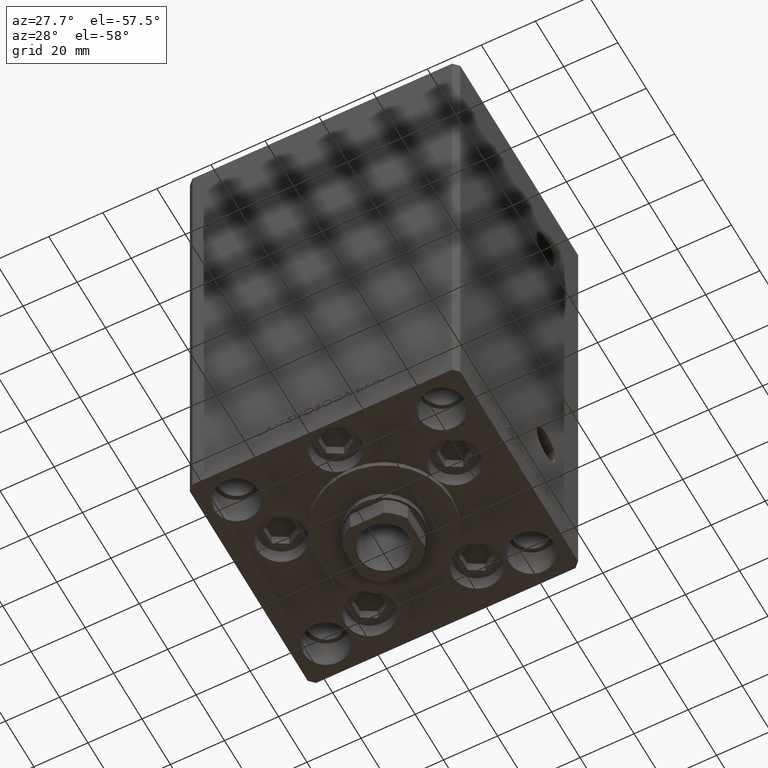
[diagram: clean part render]
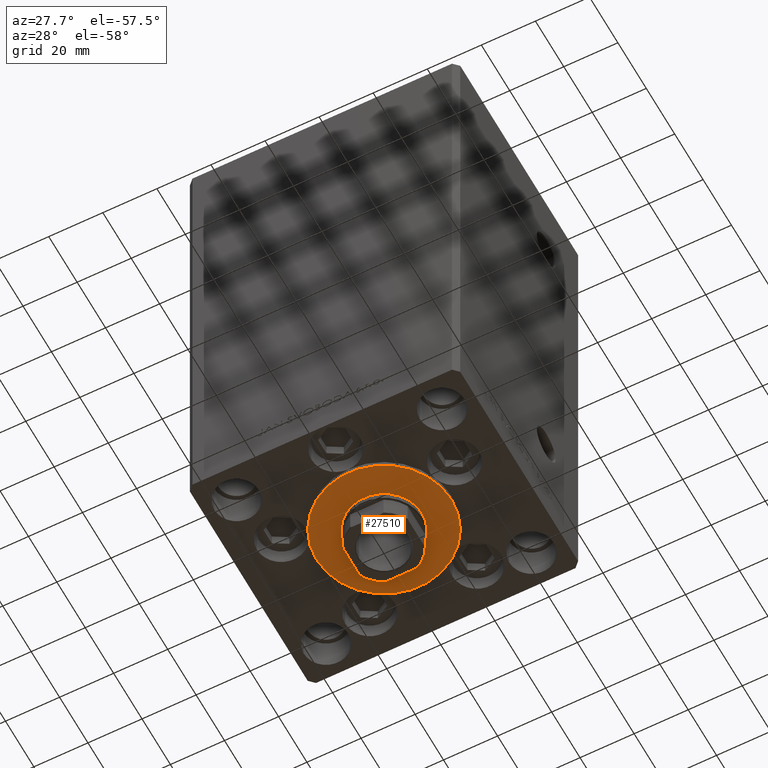
[diagram: same view with one face highlighted and labeled with its STEP entity id]
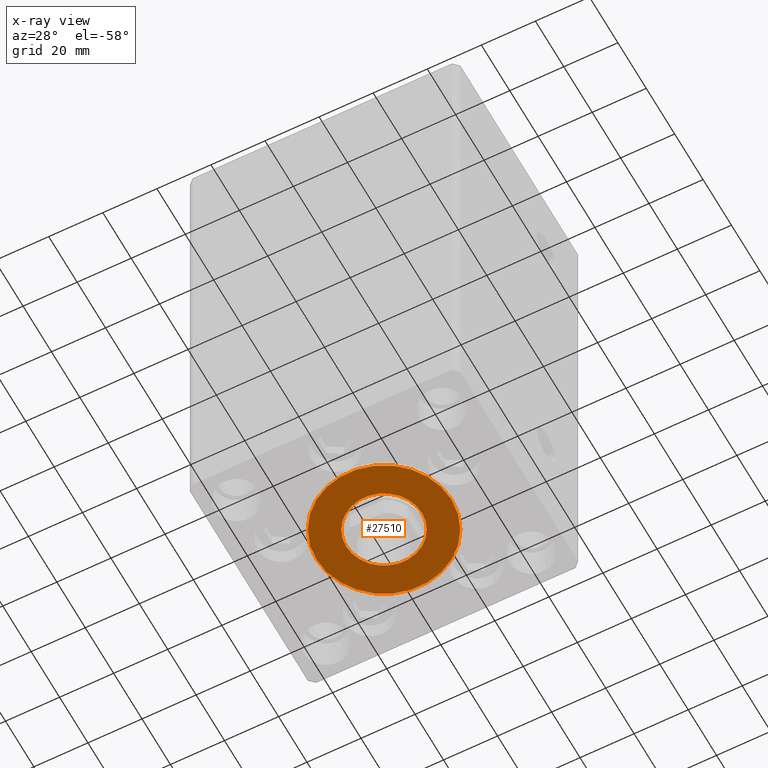
[diagram: x-ray of the same camera — body ghosted, the highlighted face saturated]
A machine part, auxiliary view. The second image highlights one B-rep face of the part: STEP entity #27510.
The next image is the same camera in x-ray: the body ghosted, the highlighted face saturated — about 0% of this face is hidden behind the body in this view.
In plain terms, the highlighted planar face has unit normal (0, 0, -1).
Its self-contained STEP definition (entity closure, byte-faithful):
#40 = CIRCLE ( 'NONE', #28100, 25.00000000000000000 ) ;
#77 = AXIS2_PLACEMENT_3D ( 'NONE', #43828, #30195, #18669 ) ;
#1554 = CARTESIAN_POINT ( 'NONE',  ( 25.00000000000000000, -3.877276906038844941E-15, 2.000000000000000000 ) ) ;
#1748 = EDGE_LOOP ( 'NONE', ( #15964, #38150 ) ) ;
#1760 = AXIS2_PLACEMENT_3D ( 'NONE', #45259, #11889, #41740 ) ;
#3323 = CIRCLE ( 'NONE', #1760, 25.00000000000000000 ) ;
#3883 = CARTESIAN_POINT ( 'NONE',  ( 0.000000000000000000, -6.938893903907228378E-15, 2.000000000000000000 ) ) ;
#4476 = EDGE_CURVE ( 'NONE', #46845, #11688, #16827, .T. ) ;
#7238 = EDGE_CURVE ( 'NONE', #11688, #46845, #15315, .T. ) ;
#8083 = AXIS2_PLACEMENT_3D ( 'NONE', #3883, #8642, #23954 ) ;
#8642 = DIRECTION ( 'NONE',  ( 0.000000000000000000, 0.000000000000000000, 1.000000000000000000 ) ) ;
#10258 = CARTESIAN_POINT ( 'NONE',  ( -25.00000000000000000, -6.938893903907228378E-15, 2.000000000000000000 ) ) ;
#10416 = AXIS2_PLACEMENT_3D ( 'NONE', #24043, #17011, #43357 ) ;
#11621 = ORIENTED_EDGE ( 'NONE', *, *, #33857, .T. ) ;
#11688 = VERTEX_POINT ( 'NONE', #43386 ) ;
#11889 = DIRECTION ( 'NONE',  ( 0.000000000000000000, 0.000000000000000000, 1.000000000000000000 ) ) ;
#14700 = DIRECTION ( 'NONE',  ( 0.000000000000000000, 0.000000000000000000, 1.000000000000000000 ) ) ;
#15315 = CIRCLE ( 'NONE', #8083, 14.00000000000000000 ) ;
#15964 = ORIENTED_EDGE ( 'NONE', *, *, #4476, .F. ) ;
#16827 = CIRCLE ( 'NONE', #10416, 14.00000000000000000 ) ;
#17011 = DIRECTION ( 'NONE',  ( 0.000000000000000000, 0.000000000000000000, 1.000000000000000000 ) ) ;
#18669 = DIRECTION ( 'NONE',  ( 1.000000000000000000, 0.000000000000000000, -0.000000000000000000 ) ) ;
#20884 = VERTEX_POINT ( 'NONE', #1554 ) ;
#22361 = ORIENTED_EDGE ( 'NONE', *, *, #26504, .T. ) ;
#22719 = CARTESIAN_POINT ( 'NONE',  ( 0.000000000000000000, -6.938893903907228378E-15, 2.000000000000000000 ) ) ;
#23954 = DIRECTION ( 'NONE',  ( 1.000000000000000000, 0.000000000000000000, 0.000000000000000000 ) ) ;
#24043 = CARTESIAN_POINT ( 'NONE',  ( 0.000000000000000000, -6.938893903907228378E-15, 2.000000000000000000 ) ) ;
#26075 = CARTESIAN_POINT ( 'NONE',  ( 14.00000000000000000, -6.938893903907228378E-15, 2.000000000000000000 ) ) ;
#26504 = EDGE_CURVE ( 'NONE', #27254, #20884, #40, .T. ) ;
#27254 = VERTEX_POINT ( 'NONE', #10258 ) ;
#27510 = ADVANCED_FACE ( 'NONE', ( #36303, #33457 ), #49010, .T. ) ;
#28100 = AXIS2_PLACEMENT_3D ( 'NONE', #22719, #14700, #29505 ) ;
#29505 = DIRECTION ( 'NONE',  ( 1.000000000000000000, 0.000000000000000000, 0.000000000000000000 ) ) ;
#30195 = DIRECTION ( 'NONE',  ( 0.000000000000000000, 0.000000000000000000, 1.000000000000000000 ) ) ;
#33457 = FACE_OUTER_BOUND ( 'NONE', #47234, .T. ) ;
#33857 = EDGE_CURVE ( 'NONE', #20884, #27254, #3323, .T. ) ;
#36303 = FACE_BOUND ( 'NONE', #1748, .T. ) ;
#38150 = ORIENTED_EDGE ( 'NONE', *, *, #7238, .F. ) ;
#41740 = DIRECTION ( 'NONE',  ( 1.000000000000000000, 0.000000000000000000, 0.000000000000000000 ) ) ;
#43357 = DIRECTION ( 'NONE',  ( 1.000000000000000000, 0.000000000000000000, 0.000000000000000000 ) ) ;
#43386 = CARTESIAN_POINT ( 'NONE',  ( -14.00000000000000000, -5.224388385100933937E-15, 2.000000000000000000 ) ) ;
#43828 = CARTESIAN_POINT ( 'NONE',  ( 0.000000000000000000, -6.938893903907228378E-15, 2.000000000000000000 ) ) ;
#45259 = CARTESIAN_POINT ( 'NONE',  ( 0.000000000000000000, -6.938893903907228378E-15, 2.000000000000000000 ) ) ;
#46845 = VERTEX_POINT ( 'NONE', #26075 ) ;
#47234 = EDGE_LOOP ( 'NONE', ( #22361, #11621 ) ) ;
#49010 = PLANE ( 'NONE',  #77 ) ;